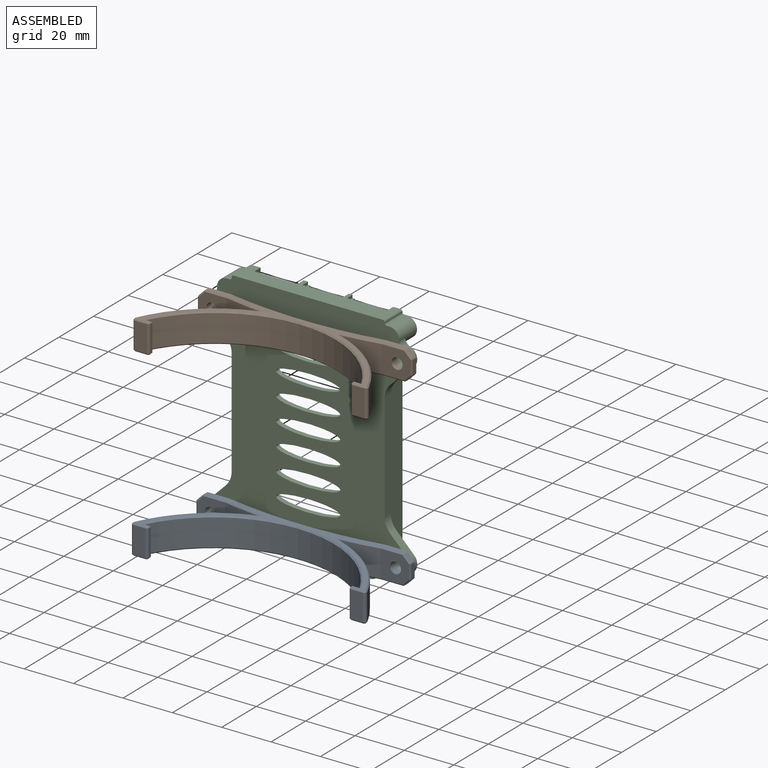
[diagram: assembled view]
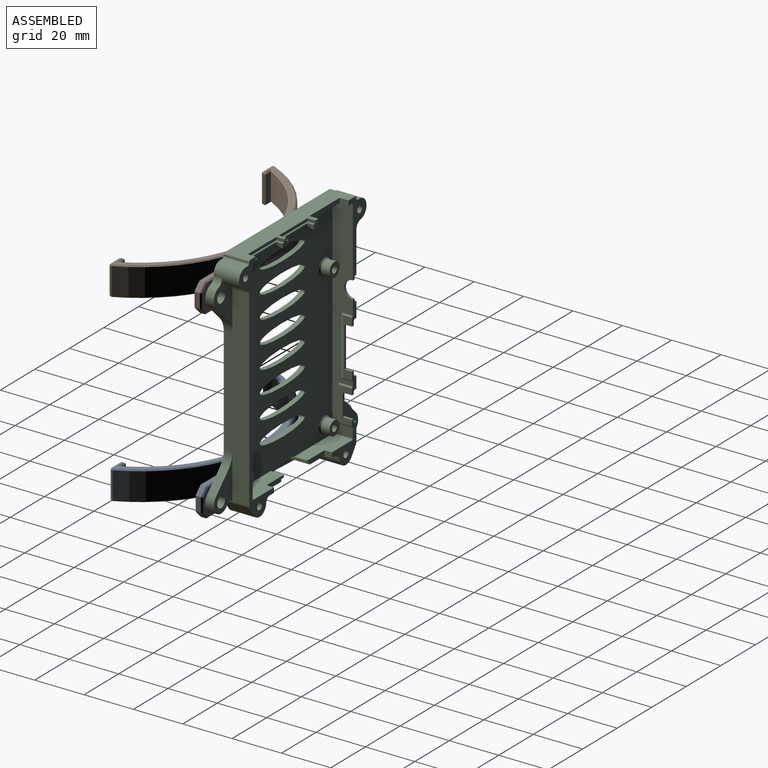
[diagram: assembled view, second angle]
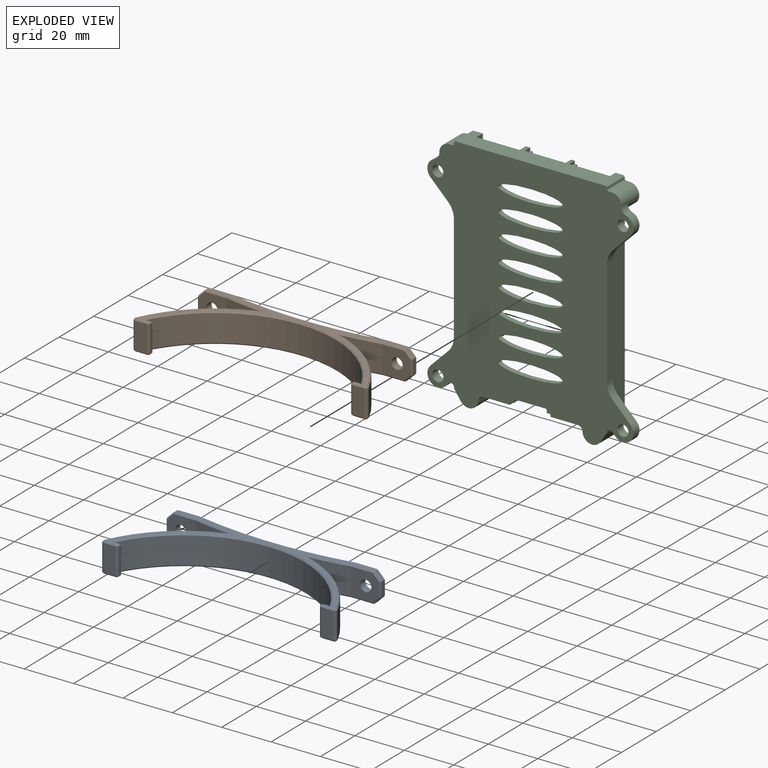
[diagram: exploded view]
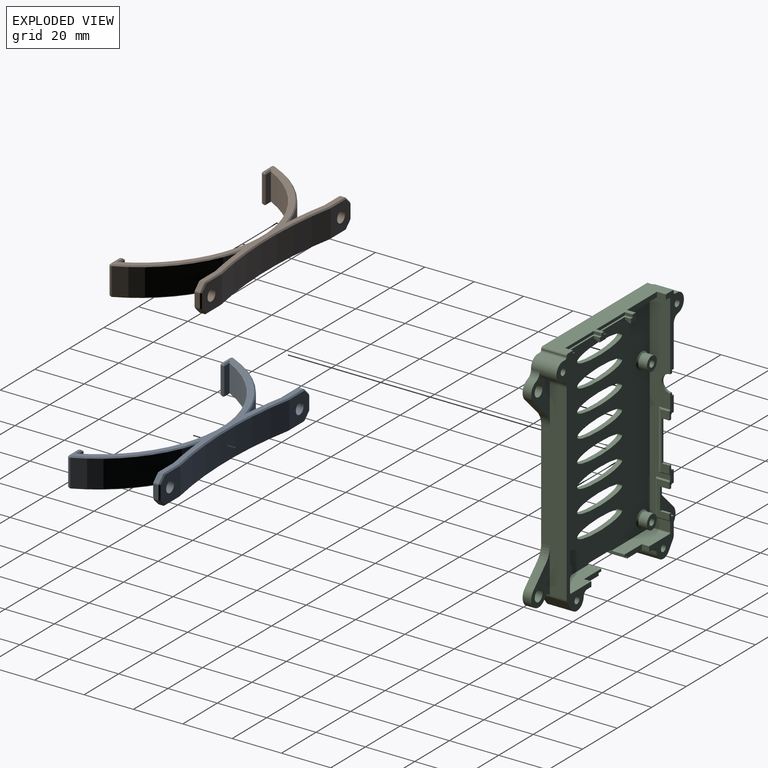
[diagram: exploded view, second angle]
ASSEMBLY  parts=3 mates=2
PART A: 106 faces, bbox 94.9x34.8x12 mm
  f0: cylinder r=49.09mm len=87.5mm, axis (0,0,-1), area 1188.1mm2, adj f1,f21,f38,f63
  f1: plane 11x3mm, normal (0,1,0), area 33mm2, adj f0,f2,f44,f68
  f2: plane 11x1mm, normal (-1,0,0), area 11mm2, adj f1,f3,f50,f73
  f3: cylinder r=1mm len=11mm, axis (0,0,-1), area 17.3mm2, adj f2,f4,f57,f77
  f4: plane 11x4.7mm, normal (0,-1,0), area 51.7mm2, adj f3,f5,f64,f81
  f5: cylinder r=1mm len=11mm, axis (0,0,-1), area 22mm2, adj f4,f6,f69,f86
  f6: cylinder r=52.09mm len=32.06mm, axis (0,0,-1), area 483.3mm2, adj f5,f7,f74,f90
  f7: cylinder r=166.88mm len=16.2mm, axis (0,0,-1), area 180.1mm2, adj f6,f8,f78,f96
  f8: plane 11.5x11mm, normal (0,-1,0), area 103.3mm2, adj f7,f24,f82,f91,f100,f101,f105
  f9: plane 5.59x2mm, normal (1,0,0), area 11.2mm2, adj f92,f93,f101,f102
  f10: plane 11.5x11mm, normal (0,1,0), area 103.3mm2, adj f11,f24,f75,f84,f89,f93,f94
  f11: cylinder r=166.88mm len=63mm, axis (0,0,-1), area 697.2mm2, adj f10,f12,f70,f85
  f12: plane 11.5x11mm, normal (0,1,0), area 103.3mm2, adj f11,f25,f52,f59,f65,f71,f80
  f13: plane 5.59x2mm, normal (-1,0,0), area 11.2mm2, adj f46,f47,f59,f60
  f14: plane 11.5x11mm, normal (0,-1,0), area 103.3mm2, adj f15,f25,f39,f40,f47,f61,f62
  f15: cylinder r=166.88mm len=16.2mm, axis (0,0,-1), area 180.1mm2, adj f14,f16,f36,f55
  f16: cylinder r=52.09mm len=32.06mm, axis (0,0,-1), area 483.3mm2, adj f15,f17,f34,f48
  f17: cylinder r=1mm len=11mm, axis (0,0,-1), area 22mm2, adj f16,f18,f32,f42
  f18: plane 11x4.7mm, normal (0,-1,0), area 51.7mm2, adj f17,f19,f30,f37
  f19: cylinder r=1mm len=11mm, axis (0,0,-1), area 17.3mm2, adj f18,f20,f31,f43
  f20: plane 11x1mm, normal (1,0,0), area 11mm2, adj f19,f21,f33,f49
  f21: plane 11x3mm, normal (0,1,0), area 33mm2, adj f0,f20,f35,f56
  f22: plane 93.91x33.83mm, normal (0,0,1), area 366.4mm2, adj f30,f31,f32,f33,f34,f35,f36,f38
  f23: plane 93.91x33.83mm, normal (0,0,-1), area 366.4mm2, adj f37,f42,f43,f48,f49,f55,f56,f62
  f24: cylinder r=2.25mm len=4.5mm, axis (0,1,0), area 42.4mm2, adj f8,f10
  f25: cylinder r=2.25mm len=4.5mm, axis (0,1,0), area 42.4mm2, adj f12,f14
  f26: plane 2.71x2.71mm, normal (-0.71,0,-0.71), area 7.7mm2, adj f60,f61,f71,f72
  f27: plane 2.71x2.71mm, normal (-0.71,0,0.71), area 7.7mm2, adj f40,f46,f51,f52
  f28: plane 2.71x2.71mm, normal (0.71,0,0.71), area 7.7mm2, adj f83,f84,f91,f92
  f29: plane 2.71x2.71mm, normal (0.71,0,-0.71), area 7.7mm2, adj f94,f99,f102,f105
  f30: plane 4.7x0.5mm, normal (0,-0.71,0.71), area 3.3mm2, adj f18,f22,f31,f32
  f31: cone r=0.5mm half-angle=45deg, axis (0,0,-1), area 0.8mm2, adj f19,f22,f30,f33
  f32: cone r=0.5mm half-angle=45deg, axis (0,0,-1), area 1.1mm2, adj f17,f22,f30,f34
  f33: plane 1x0.5mm, normal (0.71,0,0.71), area 0.5mm2, adj f20,f22,f31,f35
  f34: cone r=51.59mm half-angle=45deg, axis (0,0,-1), area 31.9mm2, adj f16,f22,f32,f36
  f35: plane 3.81x0.5mm, normal (0,0.71,0.71), area 2.2mm2, adj f21,f22,f33,f38
  f36: cone r=166.38mm half-angle=45deg, axis (0,0,-1), area 12.5mm2, adj f15,f22,f34,f39
  f37: plane 4.7x0.5mm, normal (0,-0.71,-0.71), area 3.3mm2, adj f18,f23,f42,f43
  f38: cone r=49.09mm half-angle=45deg, axis (0,0,1), area 77.3mm2, adj f0,f22,f35,f44
  f39: plane 8.84x0.5mm, normal (0,-0.71,0.71), area 6.2mm2, adj f14,f22,f36,f45
  f40: plane 3.06x3.06mm, normal (-0.5,-0.71,0.5), area 2.7mm2, adj f14,f27,f41,f45
  f41: plane 0.5x0.5mm, normal (-0.68,-0.68,0.28), area 0.1mm2, adj f40,f46,f47
  f42: cone r=1mm half-angle=45deg, axis (0,0,1), area 1.1mm2, adj f17,f23,f37,f48
  f43: cone r=1mm half-angle=45deg, axis (0,0,1), area 0.8mm2, adj f19,f23,f37,f49
  f44: plane 3.81x0.5mm, normal (0,0.71,0.71), area 2.2mm2, adj f1,f22,f38,f50
  f45: plane 0.5x0.5mm, normal (-0.28,-0.68,0.68), area 0.1mm2, adj f39,f40,f51
  f46: plane 2x0.35mm, normal (-0.92,0,0.38), area 0.8mm2, adj f13,f27,f41,f53
  f47: plane 5.59x0.5mm, normal (-0.71,-0.71,0), area 3.9mm2, adj f13,f14,f41,f54
  f48: cone r=52.09mm half-angle=45deg, axis (0,0,1), area 31.9mm2, adj f16,f23,f42,f55
  f49: plane 1x0.5mm, normal (0.71,0,-0.71), area 0.5mm2, adj f20,f23,f43,f56
  f50: plane 1x0.5mm, normal (-0.71,0,0.71), area 0.5mm2, adj f2,f22,f44,f57
  f51: plane 2x0.35mm, normal (-0.38,0,0.92), area 0.8mm2, adj f22,f27,f45,f58
  f52: plane 3.06x3.06mm, normal (-0.5,0.71,0.5), area 2.7mm2, adj f12,f27,f53,f58
  f53: plane 0.5x0.5mm, normal (-0.68,0.68,0.28), area 0.1mm2, adj f46,f52,f59
  f54: plane 0.5x0.5mm, normal (-0.68,-0.68,-0.28), area 0.1mm2, adj f47,f60,f61
  f55: cone r=166.88mm half-angle=45deg, axis (0,0,1), area 12.5mm2, adj f15,f23,f48,f62
  f56: plane 3.81x0.5mm, normal (0,0.71,-0.71), area 2.2mm2, adj f21,f23,f49,f63
  f57: cone r=0.5mm half-angle=45deg, axis (0,0,-1), area 0.8mm2, adj f3,f22,f50,f64
  f58: plane 0.5x0.5mm, normal (-0.28,0.68,0.68), area 0.1mm2, adj f51,f52,f65
  f59: plane 5.59x0.5mm, normal (-0.71,0.71,0), area 3.9mm2, adj f12,f13,f53,f66
  f60: plane 2x0.35mm, normal (-0.92,0,-0.38), area 0.8mm2, adj f13,f26,f54,f66
  f61: plane 3.06x3.06mm, normal (-0.5,-0.71,-0.5), area 2.7mm2, adj f14,f26,f54,f67
  f62: plane 8.84x0.5mm, normal (0,-0.71,-0.71), area 6.2mm2, adj f14,f23,f55,f67
  f63: cone r=49.59mm half-angle=45deg, axis (0,0,-1), area 77.3mm2, adj f0,f23,f56,f68
  f64: plane 4.7x0.5mm, normal (0,-0.71,0.71), area 3.3mm2, adj f4,f22,f57,f69
  f65: plane 8.79x0.5mm, normal (0,0.71,0.71), area 6.2mm2, adj f12,f22,f58,f70
  f66: plane 0.5x0.5mm, normal (-0.68,0.68,-0.28), area 0.1mm2, adj f59,f60,f71
  f67: plane 0.5x0.5mm, normal (-0.28,-0.68,-0.68), area 0.1mm2, adj f61,f62,f72
  f68: plane 3.81x0.5mm, normal (0,0.71,-0.71), area 2.2mm2, adj f1,f23,f63,f73
  f69: cone r=1mm half-angle=45deg, axis (0,0,-1), area 1.1mm2, adj f5,f22,f64,f74
  f70: cone r=166.88mm half-angle=45deg, axis (0,0,1), area 44.9mm2, adj f11,f22,f65,f75
  f71: plane 3.06x3.06mm, normal (-0.5,0.71,-0.5), area 2.7mm2, adj f12,f26,f66,f76
  f72: plane 2x0.35mm, normal (-0.38,0,-0.92), area 0.8mm2, adj f23,f26,f67,f76
  f73: plane 1x0.5mm, normal (-0.71,0,-0.71), area 0.5mm2, adj f2,f23,f68,f77
  f74: cone r=51.59mm half-angle=45deg, axis (0,0,-1), area 31.9mm2, adj f6,f22,f69,f78
  f75: plane 8.79x0.5mm, normal (0,0.71,0.71), area 6.2mm2, adj f10,f22,f70,f79
  f76: plane 0.5x0.5mm, normal (-0.28,0.68,-0.68), area 0.1mm2, adj f71,f72,f80
  f77: cone r=1mm half-angle=45deg, axis (0,0,1), area 0.8mm2, adj f3,f23,f73,f81
  f78: cone r=166.38mm half-angle=45deg, axis (0,0,-1), area 12.5mm2, adj f7,f22,f74,f82
  f79: plane 0.5x0.5mm, normal (0.28,0.68,0.68), area 0.1mm2, adj f75,f83,f84
  f80: plane 8.79x0.5mm, normal (0,0.71,-0.71), area 6.2mm2, adj f12,f23,f76,f85
  f81: plane 4.7x0.5mm, normal (0,-0.71,-0.71), area 3.3mm2, adj f4,f23,f77,f86
  f82: plane 8.84x0.5mm, normal (0,-0.71,0.71), area 6.2mm2, adj f8,f22,f78,f87
  f83: plane 2x0.35mm, normal (0.38,0,0.92), area 0.8mm2, adj f22,f28,f79,f87
  f84: plane 3.06x3.06mm, normal (0.5,0.71,0.5), area 2.7mm2, adj f10,f28,f79,f88
  f85: cone r=167.38mm half-angle=45deg, axis (0,0,-1), area 44.9mm2, adj f11,f23,f80,f89
  f86: cone r=0.5mm half-angle=45deg, axis (0,0,1), area 1.1mm2, adj f5,f23,f81,f90
  f87: plane 0.5x0.5mm, normal (0.28,-0.68,0.68), area 0.1mm2, adj f82,f83,f91
  f88: plane 0.5x0.5mm, normal (0.68,0.68,0.28), area 0.1mm2, adj f84,f92,f93
  f89: plane 8.79x0.5mm, normal (0,0.71,-0.71), area 6.2mm2, adj f10,f23,f85,f95
  f90: cone r=52.09mm half-angle=45deg, axis (0,0,1), area 31.9mm2, adj f6,f23,f86,f96
  f91: plane 3.06x3.06mm, normal (0.5,-0.71,0.5), area 2.7mm2, adj f8,f28,f87,f97
  f92: plane 2x0.35mm, normal (0.92,0,0.38), area 0.8mm2, adj f9,f28,f88,f97
  f93: plane 5.59x0.5mm, normal (0.71,0.71,0), area 3.9mm2, adj f9,f10,f88,f98
  f94: plane 3.06x3.06mm, normal (0.5,0.71,-0.5), area 2.7mm2, adj f10,f29,f95,f98
  f95: plane 0.5x0.5mm, normal (0.28,0.68,-0.68), area 0.1mm2, adj f89,f94,f99
  f96: cone r=166.88mm half-angle=45deg, axis (0,0,1), area 12.5mm2, adj f7,f23,f90,f100
  f97: plane 0.5x0.5mm, normal (0.68,-0.68,0.28), area 0.1mm2, adj f91,f92,f101
  f98: plane 0.5x0.5mm, normal (0.68,0.68,-0.28), area 0.1mm2, adj f93,f94,f102
  f99: plane 2x0.35mm, normal (0.38,0,-0.92), area 0.8mm2, adj f23,f29,f95,f103
  f100: plane 8.84x0.5mm, normal (0,-0.71,-0.71), area 6.2mm2, adj f8,f23,f96,f103
  f101: plane 5.59x0.5mm, normal (0.71,-0.71,0), area 3.9mm2, adj f8,f9,f97,f104
  f102: plane 2x0.35mm, normal (0.92,0,-0.38), area 0.8mm2, adj f9,f29,f98,f104
  f103: plane 0.5x0.5mm, normal (0.28,-0.68,-0.68), area 0.1mm2, adj f99,f100,f105
  f104: plane 0.5x0.5mm, normal (0.68,-0.68,-0.28), area 0.1mm2, adj f101,f102,f105
  f105: plane 3.06x3.06mm, normal (0.5,-0.71,-0.5), area 2.7mm2, adj f8,f29,f103,f104
PART B: same geometry as A
PART C: 170 faces, bbox 83.8x10.6x96.6 mm
  f0: plane 96.58x83.83mm, normal (0,-1,0), area 5317.9mm2, adj f1,f6,f7,f8,f9,f37,f38,f39
  f1: cylinder r=2.25mm len=4.5mm, axis (0,-1,0), area 49.5mm2, adj f0,f3
  f2: plane 22.79x10.75mm, normal (0,1,0), area 100.2mm2, adj f8,f9,f93,f123,f124,f125,f126,f127
  f3: plane 22.79x10.75mm, normal (0,1,0), area 100.2mm2, adj f1,f39,f152,f153,f154,f155,f156,f157
  f4: plane 20.07x10.76mm, normal (0,1,0), area 93.7mm2, adj f6,f39,f41,f147,f148,f149,f150,f151
  f5: plane 20.07x10.76mm, normal (0,1,0), area 93.7mm2, adj f7,f93,f128,f129,f130,f131,f132,f133
  f6: cylinder r=2.25mm len=4.5mm, axis (0,-1,0), area 49.5mm2, adj f0,f4
  f7: cylinder r=2.25mm len=4.5mm, axis (0,-1,0), area 49.5mm2, adj f0,f5
  f8: cylinder r=2.25mm len=4.5mm, axis (0,-1,0), area 49.5mm2, adj f0,f2
  f9: cylinder r=3.9mm len=10.3mm, axis (0,-1,0), area 101.4mm2, adj f0,f2,f12,f123,f127,f139
  f10: plane 3x2.8mm, normal (0,1,0), area 7.2mm2, adj f25,f28,f30,f37,f162,f163
  f11: plane 3.5x3mm, normal (0,1,0), area 8.1mm2, adj f29,f32,f35,f37,f163,f164,f167,f169
  f12: plane 30.25x10.45mm, normal (0,1,0), area 99.5mm2, adj f9,f22,f26,f37,f89,f90,f91,f92
  f13: plane 8.65x2.5mm, normal (0,1,0), area 15.1mm2, adj f89,f93,f95,f96,f97,f98,f100,f101
  f14: plane 9.75x2.5mm, normal (0,1,0), area 16.8mm2, adj f89,f90,f91,f92,f93,f98,f101,f107
  f15: plane 15.1x14.15mm, normal (0,1,0), area 78mm2, adj f17,f46,f82,f88,f89,f93,f97,f99
  f16: plane 96.25x20.25mm, normal (0,1,0), area 280.9mm2, adj f23,f24,f26,f34,f35,f36,f37,f38
  f17: cylinder r=1.4mm len=8.3mm, axis (0,-1,0), area 73mm2, adj f15,f20
  f18: plane 2.8x2.8mm, normal (0,1,0), area 6.2mm2, adj f22
  f19: plane 2.8x2.8mm, normal (0,1,0), area 6.2mm2, adj f23
  f20: plane 2.8x2.8mm, normal (0,1,0), area 6.2mm2, adj f17
  f21: plane 2.8x2.8mm, normal (0,1,0), area 6.2mm2, adj f24
  f22: cylinder r=1.4mm len=8.3mm, axis (0,-1,0), area 73mm2, adj f12,f18
  f23: cylinder r=1.4mm len=8.3mm, axis (0,1,0), area 73mm2, adj f16,f19
  f24: cylinder r=1.4mm len=8.3mm, axis (0,-1,0), area 73mm2, adj f16,f21
  f25: plane 3.6x3mm, normal (-1,0,0), area 8.7mm2, adj f10,f26,f27,f30,f37,f161
  f26: plane 57x8.3mm, normal (0,0,-1), area 322.8mm2, adj f12,f16,f25,f27,f28,f31,f32,f33
  f27: plane 2.8x2mm, normal (0,-0.45,-0.89), area 6.3mm2, adj f25,f26,f28,f30
  f28: plane 2.55x1.8mm, normal (1,0,0), area 3.5mm2, adj f10,f26,f27,f30,f163,f168
  f29: plane 3.5x0.55mm, normal (0,0,-1), area 1.9mm2, adj f11,f31,f32,f169
  f30: plane 2.8x0.55mm, normal (0,0,-1), area 1.5mm2, adj f10,f25,f27,f28
  f31: plane 3.5x2mm, normal (0,-0.45,-0.89), area 7.8mm2, adj f26,f29,f32,f169
  f32: plane 2.55x1.8mm, normal (1,0,0), area 3.5mm2, adj f11,f26,f29,f31,f33,f35
  f33: plane 14.5x0.8mm, normal (0,1,0), area 11.6mm2, adj f26,f32,f34,f35
  f34: plane 2.47x0.8mm, normal (-1,0,0), area 2mm2, adj f16,f26,f33,f35
  f35: plane 16.5x3.17mm, normal (0,0,1), area 16.5mm2, adj f11,f16,f32,f33,f34,f36,f166,f167
  f36: plane 3.17x1.2mm, normal (-1,0,0), area 3.8mm2, adj f16,f35,f37,f166
  f37: plane 60.4x10.3mm, normal (0,0,1), area 454.9mm2, adj f0,f10,f11,f12,f16,f25,f36,f38
  f38: cylinder r=0.8mm len=10.3mm, axis (0,-1,0), area 12.9mm2, adj f0,f16,f37,f40
  f39: plane 77.46x10.3mm, normal (1,0,0), area 678.5mm2, adj f0,f3,f4,f16,f41,f151,f152,f157
  f40: plane 10.3x0.18mm, normal (1,0,0), area 1.9mm2, adj f0,f16,f38,f159
  f41: cylinder r=2mm len=10.3mm, axis (0,1,0), area 12.1mm2, adj f0,f4,f16,f39,f42,f147
  f42: plane 10.3x3.48mm, normal (0.82,0,-0.58), area 43.8mm2, adj f0,f16,f41,f43
  f43: cylinder r=3.9mm len=10.3mm, axis (0,-1,0), area 99.9mm2, adj f0,f16,f42,f44
  f44: cylinder r=2mm len=10.3mm, axis (0,1,0), area 31.5mm2, adj f0,f16,f43,f45
  f45: plane 10.96x10.3mm, normal (0,0,-1), area 87.3mm2, adj f0,f16,f44,f47,f83,f84
  f46: plane 10.76x10.3mm, normal (0,0,-1), area 85.3mm2, adj f0,f15,f136,f141,f142,f146
  f47: plane 7.3x1mm, normal (-1,0,0), area 7.3mm2, adj f0,f45,f48,f83
  f48: plane 7.3x1.5mm, normal (0,0,-1), area 10.9mm2, adj f0,f47,f50,f83
  f49: plane 7.3x1.5mm, normal (0,0,-1), area 11mm2, adj f0,f142,f143,f146
  f50: plane 7.3x1mm, normal (-1,0,0), area 7.3mm2, adj f0,f48,f51,f81,f83
  f51: cylinder r=0.5mm len=2mm, axis (0,-1,0), area 1.6mm2, adj f0,f50,f52,f145
  f52: plane 86.93x58.33mm, normal (0,1,0), area 4054.4mm2, adj f26,f51,f53,f54,f55,f56,f57,f58
  f53: extruded ~26x5mm, area 109.1mm2, adj f0,f52
  f54: extruded ~26x5mm, area 109.1mm2, adj f0,f52
  f55: extruded ~26x5mm, area 109.1mm2, adj f0,f52
  f56: extruded ~26x5mm, area 109.1mm2, adj f0,f52
  f57: extruded ~26x5mm, area 109.1mm2, adj f0,f52
  f58: extruded ~26x5mm, area 109.1mm2, adj f0,f52
  f59: extruded ~26x5mm, area 109.1mm2, adj f0,f52
  f60: extruded ~26x5mm, area 109.1mm2, adj f0,f52
  f61: cone r=3.15mm half-angle=45deg, axis (0,-1,0), area 14mm2, adj f52,f62
  f62: cylinder r=2.9mm len=5.8mm, axis (0,1,0), area 63.8mm2, adj f61,f64
  f63: plane 5.8x5.8mm, normal (0,1,0), area 20.3mm2, adj f67,f69
  f64: plane 5.8x5.8mm, normal (0,1,0), area 20.3mm2, adj f62,f74
  f65: plane 5.8x5.8mm, normal (0,1,0), area 20.3mm2, adj f76,f77
  f66: plane 5.8x5.8mm, normal (0,1,0), area 20.3mm2, adj f75,f79
  f67: cylinder r=2.9mm len=5.8mm, axis (0,1,0), area 63.8mm2, adj f63,f68
  f68: cone r=3.15mm half-angle=45deg, axis (0,-1,0), area 14mm2, adj f52,f67
  f69: cylinder r=1.4mm len=5mm, axis (0,1,0), area 44mm2, adj f63,f72
  f70: plane 2.8x2.8mm, normal (0,1,0), area 6.2mm2, adj f74
  f71: plane 2.8x2.8mm, normal (0,1,0), area 6.2mm2, adj f75
  f72: plane 2.8x2.8mm, normal (0,1,0), area 6.2mm2, adj f69
  f73: plane 2.8x2.8mm, normal (0,1,0), area 6.2mm2, adj f76
  f74: cylinder r=1.4mm len=5mm, axis (0,1,0), area 44mm2, adj f64,f70
  f75: cylinder r=1.4mm len=5mm, axis (0,1,0), area 44mm2, adj f66,f71
  f76: cylinder r=1.4mm len=5mm, axis (0,1,0), area 44mm2, adj f65,f73
  f77: cylinder r=2.9mm len=5.8mm, axis (0,1,0), area 63.8mm2, adj f65,f78
  f78: cone r=3.15mm half-angle=45deg, axis (0,-1,0), area 14mm2, adj f52,f77
  f79: cylinder r=2.9mm len=5.8mm, axis (0,1,0), area 63.8mm2, adj f66,f80
  f80: cone r=3.15mm half-angle=45deg, axis (0,-1,0), area 14mm2, adj f52,f79
  f81: plane 21.85x8.3mm, normal (0,0,1), area 151.4mm2, adj f16,f50,f52,f83,f84,f85
  f82: plane 21.65x8.3mm, normal (0,0,1), area 149.7mm2, adj f15,f52,f88,f141,f142,f143
  f83: plane 10x2mm, normal (0,1,0), area 18.5mm2, adj f45,f47,f48,f50,f81,f84
  f84: plane 3x2mm, normal (-1,0,0), area 6mm2, adj f16,f45,f81,f83
  f85: cylinder r=0.5mm len=8.3mm, axis (0,1,0), area 6.5mm2, adj f16,f52,f81,f86
  f86: plane 85.6x8.3mm, normal (-1,0,0), area 710.5mm2, adj f16,f52,f85,f87
  f87: cylinder r=0.5mm len=8.3mm, axis (0,1,0), area 6.5mm2, adj f16,f26,f52,f86
  f88: cylinder r=0.5mm len=8.3mm, axis (0,1,0), area 6.5mm2, adj f15,f52,f82,f89
  f89: plane 85.6x8.3mm, normal (1,0,0), area 494.1mm2, adj f12,f13,f14,f15,f52,f88,f90,f102
  f90: cylinder r=3.5mm len=7mm, axis (-1,0,0), area 11mm2, adj f12,f14,f89,f91
  f91: plane 9.5x4.75mm, normal (-1,0,0), area 16.2mm2, adj f12,f14,f90,f92
  f92: cylinder r=4.75mm len=9.5mm, axis (-1,0,0), area 14.9mm2, adj f12,f14,f91,f93
  f93: plane 77.46x10.3mm, normal (-1,0,0), area 472.5mm2, adj f0,f2,f5,f12,f13,f14,f15,f92
  f94: plane 10.3x0.18mm, normal (-1,0,0), area 1.9mm2, adj f0,f12,f137,f138
  f95: plane 5.12x1mm, normal (0,0,1), area 5.1mm2, adj f13,f93,f96,f121
  f96: plane 5.12x0.5mm, normal (-0.71,0,0.71), area 3.4mm2, adj f13,f95,f98,f122
  f97: plane 11x4.75mm, normal (-1,0,0), area 18.5mm2, adj f13,f15,f99,f105,f106,f113,f116,f117
  f98: plane 20x4.62mm, normal (-1,0,0), area 40.9mm2, adj f13,f14,f96,f107,f108,f109,f119,f122
  f99: plane 3.75x1mm, normal (0,0,1), area 3.8mm2, adj f15,f97,f100,f106
  f100: plane 14x5.25mm, normal (1,0,0), area 39.8mm2, adj f13,f15,f99,f102,f103,f104,f105,f106
  f101: plane 23x3.62mm, normal (1,0,0), area 31.8mm2, adj f13,f14,f107,f108,f109,f110,f111,f112
  f102: plane 5.75x0.5mm, normal (0.71,0,-0.71), area 3.9mm2, adj f15,f89,f100,f103
  f103: plane 15x0.5mm, normal (0.71,-0.71,0), area 10.3mm2, adj f89,f100,f102,f104
  f104: plane 5.75x0.5mm, normal (0.71,0,0.71), area 3.9mm2, adj f13,f89,f100,f103
  f105: plane 3.75x1mm, normal (0,0,-1), area 3.8mm2, adj f13,f97,f100,f106
  f106: plane 9x1mm, normal (0,1,0), area 9mm2, adj f97,f99,f100,f105
  f107: plane 3.12x1mm, normal (0,0,-1), area 3.1mm2, adj f14,f98,f101,f108
  f108: plane 16.5x1mm, normal (0,1,0), area 16.5mm2, adj f98,f101,f107,f109
  f109: plane 3.12x1mm, normal (0,0,1), area 3.1mm2, adj f13,f98,f101,f108
  f110: plane 4.62x0.5mm, normal (0.71,0,-0.71), area 2.9mm2, adj f13,f89,f101,f111
  f111: plane 24x1mm, normal (0.89,-0.45,0), area 26.3mm2, adj f89,f101,f110,f112
  f112: plane 4.62x0.5mm, normal (0.71,0,0.71), area 2.9mm2, adj f14,f89,f101,f111
  f113: plane 5.25x0.5mm, normal (-0.71,0,-0.71), area 3.5mm2, adj f13,f97,f114,f116
  f114: plane 5.25x1mm, normal (0,0,-1), area 5.2mm2, adj f13,f93,f113,f115
  f115: plane 12x1mm, normal (0,1,0), area 12mm2, adj f93,f114,f116,f118
  f116: plane 12x0.5mm, normal (-0.71,0.71,0), area 8.1mm2, adj f97,f113,f115,f117
  f117: plane 5.25x0.5mm, normal (-0.71,0,0.71), area 3.5mm2, adj f15,f97,f116,f118
  f118: plane 5.25x1mm, normal (0,0,1), area 5.2mm2, adj f15,f93,f115,f117
  f119: plane 5.12x0.5mm, normal (-0.71,0,-0.71), area 3.4mm2, adj f14,f98,f120,f122
  f120: plane 5.12x1mm, normal (0,0,-1), area 5.1mm2, adj f14,f93,f119,f121
  f121: plane 21x1mm, normal (0,1,0), area 21mm2, adj f93,f95,f120,f122
  f122: plane 21x0.5mm, normal (-0.71,0.71,0), area 14.5mm2, adj f96,f98,f119,f121
  f123: cylinder r=3mm len=6.8mm, axis (0,-1,0), area 29.1mm2, adj f2,f9,f12,f93
  f124: cylinder r=8mm len=5.66mm, axis (0,-1,0), area 22mm2, adj f0,f2,f93,f125
  f125: plane 7.16x7.16mm, normal (-0.71,0,-0.71), area 35.5mm2, adj f0,f2,f124,f126
  f126: cylinder r=4.25mm len=7.02mm, axis (0,-1,0), area 30mm2, adj f0,f2,f125,f127
  f127: cylinder r=3mm len=3.5mm, axis (0,-1,0), area 13.4mm2, adj f0,f2,f9,f126
  f128: cylinder r=8mm len=5.66mm, axis (0,1,0), area 22mm2, adj f0,f5,f93,f129
  f129: plane 7.16x7.16mm, normal (-0.71,0,0.71), area 35.5mm2, adj f0,f5,f128,f130
  f130: cylinder r=4.25mm len=7.26mm, axis (0,-1,0), area 46.7mm2, adj f0,f5,f129,f131
  f131: plane 3.5x1.45mm, normal (0.71,0,-0.71), area 7.2mm2, adj f0,f5,f130,f132
  f132: cylinder r=1.2mm len=3.5mm, axis (0,-1,0), area 9.6mm2, adj f0,f5,f131,f133
  f133: cylinder r=2mm len=10.3mm, axis (0,-1,0), area 12.1mm2, adj f0,f5,f15,f93,f132,f134
  f134: plane 10.3x3.48mm, normal (-0.82,0,-0.58), area 43.8mm2, adj f0,f15,f133,f135
  f135: cylinder r=3.9mm len=10.3mm, axis (0,-1,0), area 99.9mm2, adj f0,f15,f134,f136
  f136: cylinder r=2mm len=10.3mm, axis (0,-1,0), area 31.5mm2, adj f0,f15,f46,f135
  f137: cylinder r=0.8mm len=10.3mm, axis (0,1,0), area 12.9mm2, adj f0,f12,f37,f94
  f138: cylinder r=0.8mm len=10.3mm, axis (0,1,0), area 12.9mm2, adj f0,f12,f94,f139
  f139: plane 10.3x1.2mm, normal (0,0,1), area 12.4mm2, adj f0,f9,f12,f138
  f140: cylinder r=0.5mm len=8.3mm, axis (0,-1,0), area 6.5mm2, adj f12,f26,f52,f89
  f141: plane 3x2mm, normal (1,0,0), area 6mm2, adj f15,f46,f82,f142
  f142: plane 10x2mm, normal (0,1,0), area 18.5mm2, adj f46,f49,f82,f141,f143,f146
  f143: plane 7.3x1mm, normal (1,0,0), area 7.3mm2, adj f0,f49,f82,f142,f144
  f144: cylinder r=0.5mm len=2mm, axis (0,-1,0), area 1.6mm2, adj f0,f52,f143,f145
  f145: plane 12.5x2mm, normal (0,0,-1), area 25mm2, adj f0,f51,f52,f144
  f146: plane 7.3x1mm, normal (1,0,0), area 7.3mm2, adj f0,f46,f49,f142
  f147: cylinder r=1.2mm len=3.5mm, axis (0,1,0), area 9.6mm2, adj f0,f4,f41,f148
  f148: plane 3.5x1.45mm, normal (-0.71,0,-0.71), area 7.2mm2, adj f0,f4,f147,f149
  f149: cylinder r=4.25mm len=7.26mm, axis (0,-1,0), area 46.7mm2, adj f0,f4,f148,f150
  f150: plane 7.16x7.16mm, normal (0.71,0,0.71), area 35.5mm2, adj f0,f4,f149,f151
  f151: cylinder r=8mm len=5.66mm, axis (0,-1,0), area 22mm2, adj f0,f4,f39,f150
  f152: cylinder r=8mm len=5.66mm, axis (0,1,0), area 22mm2, adj f0,f3,f39,f153
  f153: plane 7.16x7.16mm, normal (0.71,0,-0.71), area 35.5mm2, adj f0,f3,f152,f154
  f154: cylinder r=4.25mm len=7.02mm, axis (0,-1,0), area 30mm2, adj f0,f3,f153,f155
  f155: cylinder r=3mm len=3.5mm, axis (0,1,0), area 13.4mm2, adj f0,f3,f154,f156
  f156: cylinder r=3.9mm len=10.3mm, axis (0,1,0), area 101.4mm2, adj f0,f3,f16,f155,f157,f158
  f157: cylinder r=3mm len=6.8mm, axis (0,1,0), area 29.1mm2, adj f3,f16,f39,f156
  f158: plane 10.3x1.2mm, normal (0,0,1), area 12.4mm2, adj f0,f16,f156,f159
  f159: cylinder r=0.8mm len=10.3mm, axis (0,-1,0), area 12.9mm2, adj f0,f16,f40,f158
  f160: plane 3.6x2mm, normal (1,0,0), area 7.2mm2, adj f12,f26,f37,f161
  f161: plane 17.4x2mm, normal (0,1,0), area 34.8mm2, adj f25,f26,f37,f160
  f162: plane 3.17x1.2mm, normal (1,0,0), area 3.8mm2, adj f10,f37,f163,f165
  f163: plane 16.5x3.17mm, normal (0,0,1), area 16.5mm2, adj f10,f11,f28,f162,f164,f165,f168,f169
  f164: plane 3.17x1.2mm, normal (-1,0,0), area 3.8mm2, adj f11,f37,f163,f165
  f165: plane 16.5x1.2mm, normal (0,1,0), area 19.8mm2, adj f37,f162,f163,f164
  f166: plane 16.5x1.2mm, normal (0,1,0), area 19.8mm2, adj f35,f36,f37,f167
  f167: plane 3.17x1.2mm, normal (1,0,0), area 3.8mm2, adj f11,f35,f37,f166
  f168: plane 14.5x0.8mm, normal (0,1,0), area 11.6mm2, adj f26,f28,f163,f169
  f169: plane 2.55x1.8mm, normal (-1,0,0), area 3.5mm2, adj f11,f26,f29,f31,f163,f168
PLACE A t=(31,-32.83,-98.2)mm
PLACE B t=(31.63,-32.83,-23.2)mm
PLACE C at identity fixed
MATE fastened C.f1 <-> B.f10  axis (0,-1,0) through (68.5,0,-17.2)mm
MATE fastened A.f24 <-> C.f6  axis (0,1,0) through (68.5,0,-92.2)mm
